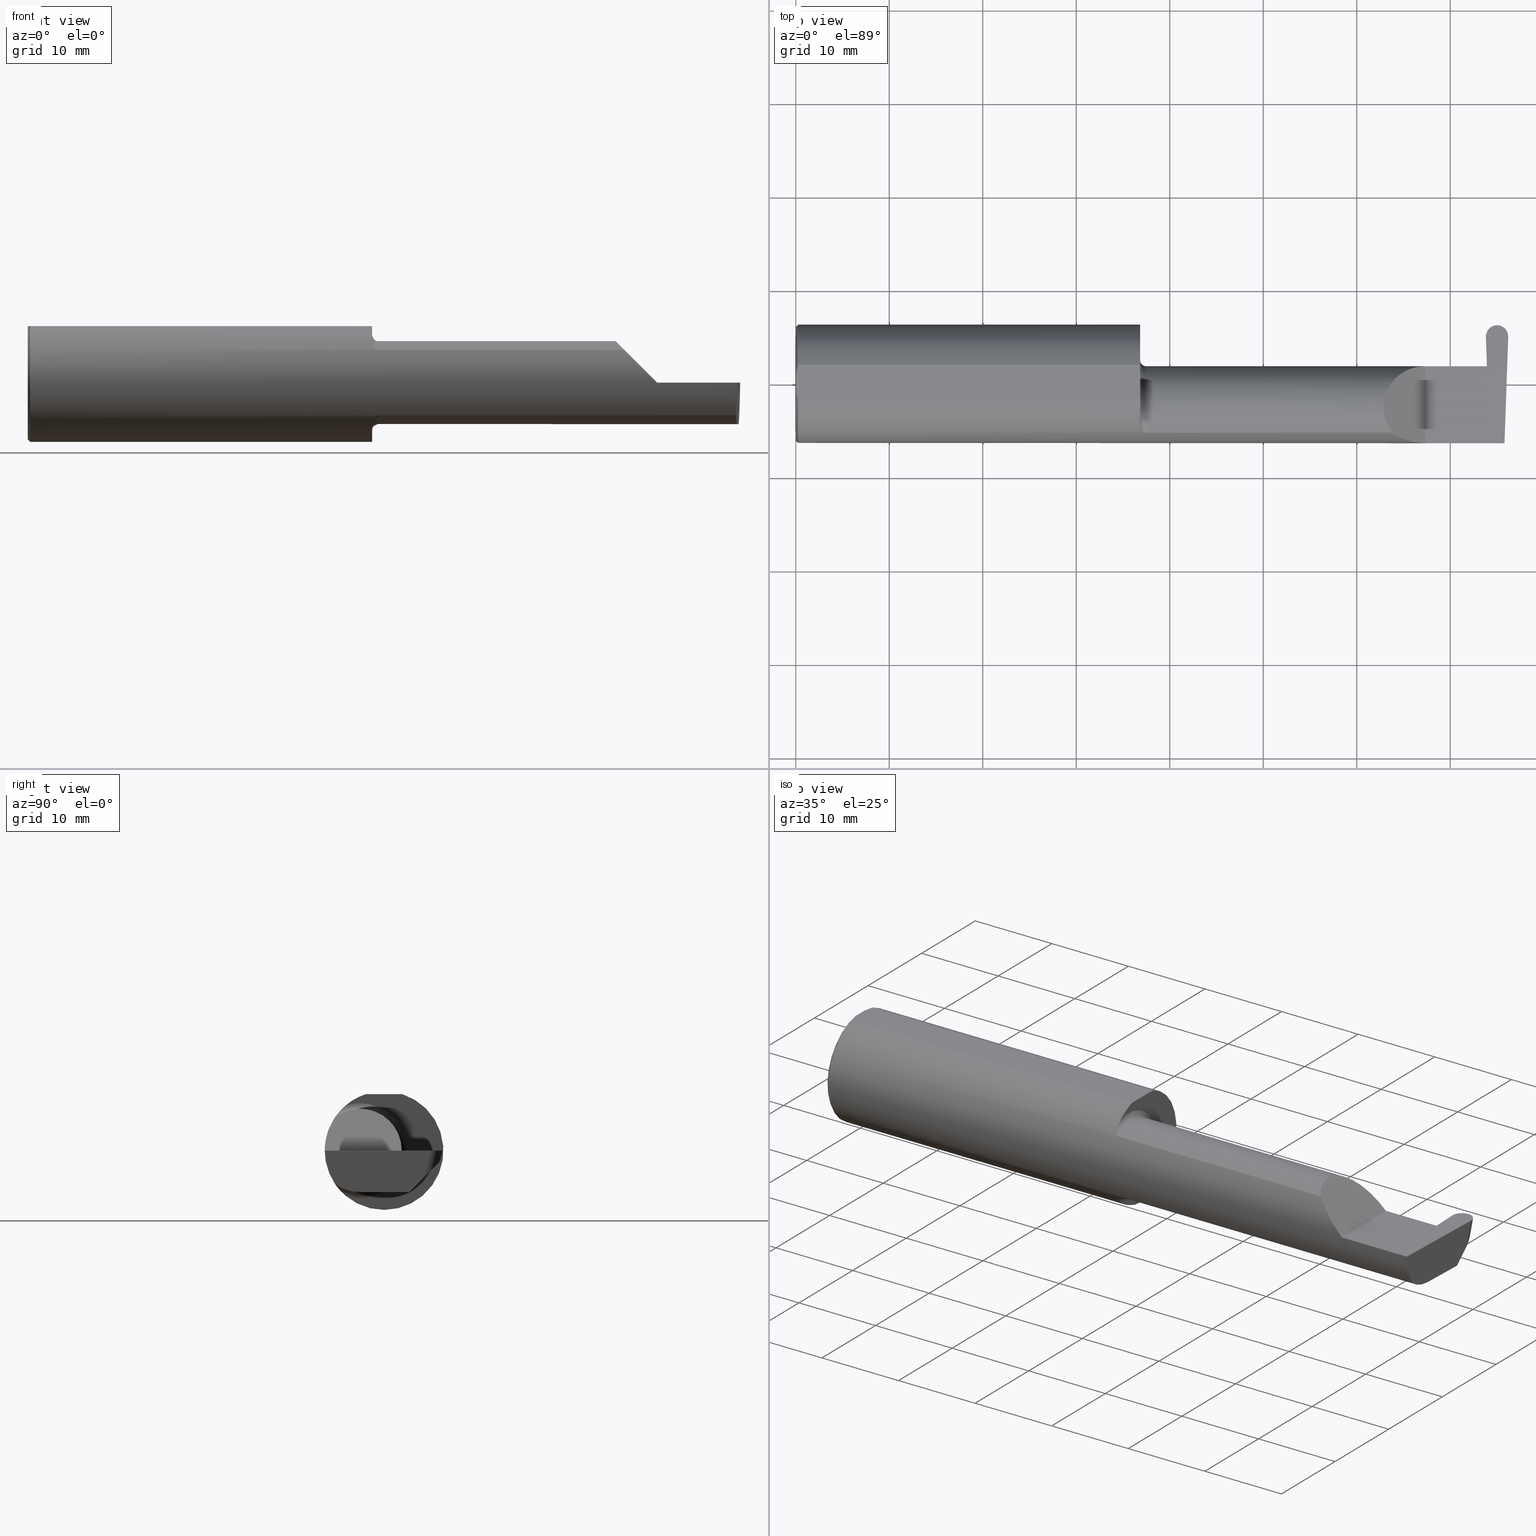
[diagram: canonical four-view strip — front | top / right | iso, engineering-drawing reading convention]
A machine part, canonical four-view strip (front | top / right | iso — engineering-drawing reading convention). The complete STEP part file that produces these views, byte-faithful:
ISO-10303-21;
HEADER;
FILE_DESCRIPTION (( 'STEP AP203' ),
    '1' );
FILE_NAME ('222467-GFR093-24.STEP',
    '2024-06-28T18:33:49',
    ( '' ),
    ( '' ),
    'SwSTEP 2.0',
    'SolidWorks 2024',
    '' );
FILE_SCHEMA (( 'CONFIG_CONTROL_DESIGN' ));
ENDSEC;

DATA;
#1 = CARTESIAN_POINT ( 'NONE',  ( 2.905909800896965045, 0.1971629156477839040, 0.0003401160246315233912 ) ) ;
#2 = VECTOR ( 'NONE', #424, 39.37007874015748143 ) ;
#3 = DIRECTION ( 'NONE',  ( -0.9992386149554828290, 0.03489418134010630057, 0.01745240643728358798 ) ) ;
#4 = PRODUCT_DEFINITION_SHAPE ( 'NONE', 'NONE',  #301 ) ;
#5 = ORIENTED_EDGE ( 'NONE', *, *, #352, .F. ) ;
#6 = CARTESIAN_POINT ( 'NONE',  ( 0.000000000000000000, 0.000000000000000000, 0.000000000000000000 ) ) ;
#7 = DIRECTION ( 'NONE',  ( 0.02590004391968206074, -0.2587322210431823866, -0.9656017944882974158 ) ) ;
#8 = ORIENTED_EDGE ( 'NONE', *, *, #48, .T. ) ;
#9 = CARTESIAN_POINT ( 'NONE',  ( 0.000000000000000000, 0.03090954545120574992, 0.2378499999999998671 ) ) ;
#10 = FACE_OUTER_BOUND ( 'NONE', #127, .T. ) ;
#11 = VECTOR ( 'NONE', #401, 39.37007874015748854 ) ;
#12 = ORIENTED_EDGE ( 'NONE', *, *, #587, .F. ) ;
#13 = EDGE_CURVE ( 'NONE', #351, #337, #184, .T. ) ;
#14 = CARTESIAN_POINT ( 'NONE',  ( 2.999933069103034811, 0.1971629156477839040, 0.0003401160246315201928 ) ) ;
#15 = VECTOR ( 'NONE', #255, 39.37007874015748143 ) ;
#16 = LINE ( 'NONE', #457, #79 ) ;
#17 = VERTEX_POINT ( 'NONE', #202 ) ;
#18 = CARTESIAN_POINT ( 'NONE',  ( 2.511704467739031887, -0.2080850024789287211, 0.1382955322609671911 ) ) ;
#19 = EDGE_CURVE ( 'NONE', #702, #384, #195, .T. ) ;
#20 = DIRECTION ( 'NONE',  ( -1.172794833305166028E-17, -1.000000000000000000, 0.000000000000000000 ) ) ;
#21 = ORIENTED_EDGE ( 'NONE', *, *, #38, .F. ) ;
#22 = TOROIDAL_SURFACE ( 'NONE', #604, 0.1999999999999999833, 0.02499999999999993894 ) ;
#23 = CARTESIAN_POINT ( 'NONE',  ( 2.650000000000000355, -0.2500000000000000555, 4.286263797015729199E-17 ) ) ;
#24 = ORIENTED_EDGE ( 'NONE', *, *, #189, .T. ) ;
#25 = LINE ( 'NONE', #464, #70 ) ;
#26 = LINE ( 'NONE', #311, #467 ) ;
#27 = LINE ( 'NONE', #574, #15 ) ;
#28 = CARTESIAN_POINT ( 'NONE',  ( 1.458182335268384699, -0.1972192205116130581, 0.1535061413537211483 ) ) ;
#29 = CC_DESIGN_APPROVAL ( #535, ( #301 ) ) ;
#30 = FACE_OUTER_BOUND ( 'NONE', #677, .T. ) ;
#31 = ORIENTED_EDGE ( 'NONE', *, *, #588, .F. ) ;
#32 = EDGE_CURVE ( 'NONE', #670, #583, #635, .T. ) ;
#33 = DIRECTION ( 'NONE',  ( -0.7071067811865439090, 0.000000000000000000, -0.7071067811865511255 ) ) ;
#34 = CARTESIAN_POINT ( 'NONE',  ( 1.468876997637615034, -0.2068363917296599241, 0.1401586554522231964 ) ) ;
#35 = DIRECTION ( 'NONE',  ( -0.7071067811865511255, 0.000000000000000000, 0.7071067811865439090 ) ) ;
#36 = EDGE_CURVE ( 'NONE', #570, #544, #117, .T. ) ;
#37 = CARTESIAN_POINT ( 'NONE',  ( 1.452968662030528879, -0.1849684355203377317, 0.1680843977756269203 ) ) ;
#38 = EDGE_CURVE ( 'NONE', #536, #81, #191, .T. ) ;
#39 = CARTESIAN_POINT ( 'NONE',  ( 2.952921434999999928, 0.2348123830215256280, -0.04601195412664271095 ) ) ;
#40 = CALENDAR_DATE ( 2024, 28, 6 ) ;
#41 = VECTOR ( 'NONE', #177, 39.37007874015748143 ) ;
#42 = CARTESIAN_POINT ( 'NONE',  ( 1.450000000000000178, -0.07650098038587530014, 0.2378499999999998671 ) ) ;
#43 = EDGE_LOOP ( 'NONE', ( #595, #329, #325 ) ) ;
#44 = DATE_AND_TIME ( #426, #321 ) ;
#45 = DIRECTION ( 'NONE',  ( 0.000000000000000000, 0.000000000000000000, -1.000000000000000000 ) ) ;
#46 = CYLINDRICAL_SURFACE ( 'NONE', #575, 0.04700000000000001399 ) ;
#47 = ORIENTED_EDGE ( 'NONE', *, *, #250, .T. ) ;
#48 = EDGE_CURVE ( 'NONE', #122, #702, #225, .T. ) ;
#49 = PERSON_AND_ORGANIZATION ( #476, #215 ) ;
#50 = CARTESIAN_POINT ( 'NONE',  ( 2.511704467739031887, -0.2080850024789287211, 0.1382955322609671911 ) ) ;
#51 = AXIS2_PLACEMENT_3D ( 'NONE', #172, #616, #285 ) ;
#52 = CARTESIAN_POINT ( 'NONE',  ( 0.000000000000000000, 0.000000000000000000, 0.000000000000000000 ) ) ;
#53 = CALENDAR_DATE ( 2024, 28, 6 ) ;
#54 = CARTESIAN_POINT ( 'NONE',  ( 2.951282902102036587, 0.2273593945695476792, -0.07385954497899656357 ) ) ;
#55 = DIRECTION ( 'NONE',  ( 0.000000000000000000, 0.000000000000000000, -1.000000000000000000 ) ) ;
#56 = VERTEX_POINT ( 'NONE', #313 ) ;
#57 = APPROVAL_DATE_TIME ( #44, #535 ) ;
#58 = PLANE ( 'NONE',  #164 ) ;
#59 = EDGE_CURVE ( 'NONE', #56, #691, #26, .T. ) ;
#60 = CC_DESIGN_DATE_AND_TIME_ASSIGNMENT ( #445, #223, ( #301 ) ) ;
#61 = CARTESIAN_POINT ( 'NONE',  ( 0.002005502345409073024, 0.04647171987093980799, 0.2378499999999998671 ) ) ;
#62 = VERTEX_POINT ( 'NONE', #483 ) ;
#63 = DIRECTION ( 'NONE',  ( 0.000000000000000000, 0.000000000000000000, -1.000000000000000000 ) ) ;
#64 = DIRECTION ( 'NONE',  ( 0.000000000000000000, -0.01745240643728358451, -0.9998476951563912696 ) ) ;
#65 = EDGE_CURVE ( 'NONE', #97, #674, #474, .T. ) ;
#66 = ORIENTED_EDGE ( 'NONE', *, *, #294, .T. ) ;
#67 = LOCAL_TIME ( 11, 33, 49.00000000000000000, #208 ) ;
#68 = DIRECTION ( 'NONE',  ( -0.02590004391968205380, 0.2587322210431823866, 0.9656017944882974158 ) ) ;
#69 = CARTESIAN_POINT ( 'NONE',  ( 2.952578855735824348, 0.2471499999999999808, 0.000000000000000000 ) ) ;
#70 = VECTOR ( 'NONE', #566, 39.37007874015748143 ) ;
#71 = ORIENTED_EDGE ( 'NONE', *, *, #317, .T. ) ;
#72 = CARTESIAN_POINT ( 'NONE',  ( -3.937007874019685528E-05, 0.2471499999999999808, 0.000000000000000000 ) ) ;
#73 = AXIS2_PLACEMENT_3D ( 'NONE', #370, #316, #89 ) ;
#74 = CARTESIAN_POINT ( 'NONE',  ( 2.650000000000000355, 0.07414999999999995206, 1.898202538678394994E-16 ) ) ;
#75 = ORIENTED_EDGE ( 'NONE', *, *, #560, .F. ) ;
#76 = FACE_OUTER_BOUND ( 'NONE', #371, .T. ) ;
#77 = APPLICATION_CONTEXT ( 'configuration controlled 3d designs of mechanical parts and assemblies' ) ;
#78 = VERTEX_POINT ( 'NONE', #421 ) ;
#79 = VECTOR ( 'NONE', #245, 39.37007874015748143 ) ;
#80 = LINE ( 'NONE', #14, #203 ) ;
#81 = VERTEX_POINT ( 'NONE', #484 ) ;
#82 = CARTESIAN_POINT ( 'NONE',  ( 2.952578855735824348, 0.2471499999999999808, 0.000000000000000000 ) ) ;
#83 = ADVANCED_FACE ( 'NONE', ( #217 ), #383, .F. ) ;
#84 = CARTESIAN_POINT ( 'NONE',  ( 1.474999999999999867, -0.1008500000000001201, 0.000000000000000000 ) ) ;
#85 = AXIS2_PLACEMENT_3D ( 'NONE', #646, #271, #55 ) ;
#86 = CARTESIAN_POINT ( 'NONE',  ( 1.451849548162864600, -0.1805300287242672663, 0.1728462070311781174 ) ) ;
#87 = LENGTH_MEASURE_WITH_UNIT ( LENGTH_MEASURE( 0.02539999999999999897 ), #362 );
#88 = DIRECTION ( 'NONE',  ( 0.000000000000000000, -1.000000000000000000, 0.000000000000000000 ) ) ;
#89 = DIRECTION ( 'NONE',  ( 0.000000000000000000, 0.000000000000000000, 1.000000000000000000 ) ) ;
#90 = DIRECTION ( 'NONE',  ( 0.000000000000000000, 0.000000000000000000, -1.000000000000000000 ) ) ;
#91 =( NAMED_UNIT ( * ) SI_UNIT ( $, .STERADIAN. ) SOLID_ANGLE_UNIT ( ) );
#92 = EDGE_CURVE ( 'NONE', #351, #78, #182, .T. ) ;
#93 = CARTESIAN_POINT ( 'NONE',  ( 1.456159563508734101, -0.1933019864360847606, 0.1584298865564833514 ) ) ;
#94 = ORIENTED_EDGE ( 'NONE', *, *, #267, .F. ) ;
#95 = DATE_TIME_ROLE ( 'classification_date' ) ;
#96 = CARTESIAN_POINT ( 'NONE',  ( 3.000000000000000444, -0.2500000000000000555, 0.000000000000000000 ) ) ;
#97 = VERTEX_POINT ( 'NONE', #106 ) ;
#98 = DATE_AND_TIME ( #330, #67 ) ;
#99 = DIRECTION ( 'NONE',  ( -0.03489949670249360009, -0.9993908270190959842, 1.222058880457094394E-16 ) ) ;
#100 = CYLINDRICAL_SURFACE ( 'NONE', #694, 0.04700000000000001399 ) ;
#101 = EDGE_CURVE ( 'NONE', #348, #429, #151, .T. ) ;
#102 = ORIENTED_EDGE ( 'NONE', *, *, #138, .F. ) ;
#103 = VECTOR ( 'NONE', #471, 39.37007874015748143 ) ;
#104 = PERSON_AND_ORGANIZATION ( #476, #215 ) ;
#105 = DIRECTION ( 'NONE',  ( 1.000000000000000000, 0.000000000000000000, 0.000000000000000000 ) ) ;
#106 = CARTESIAN_POINT ( 'NONE',  ( 2.983360130692194634, -0.2080850024789288044, -0.1382955322609671633 ) ) ;
#107 = ORIENTED_EDGE ( 'NONE', *, *, #101, .T. ) ;
#108 = CARTESIAN_POINT ( 'NONE',  ( 2.905918923725884451, 0.1970717818336510108, 0.000000000000000000 ) ) ;
#109 = AXIS2_PLACEMENT_3D ( 'NONE', #430, #386, #602 ) ;
#110 = CARTESIAN_POINT ( 'NONE',  ( 2.905871548989777509, 0.1984284167760241857, 0.000000000000000000 ) ) ;
#111 = ORIENTED_EDGE ( 'NONE', *, *, #461, .F. ) ;
#112 = ADVANCED_FACE ( 'NONE', ( #391 ), #547, .F. ) ;
#113 = DIRECTION ( 'NONE',  ( 1.000000000000000000, -1.172794833305166028E-17, 0.000000000000000000 ) ) ;
#114 = CARTESIAN_POINT ( 'NONE',  ( 2.190421435000000194, -0.2080850024789288044, -0.1382955322609671633 ) ) ;
#115 = VERTEX_POINT ( 'NONE', #324 ) ;
#116 = CARTESIAN_POINT ( 'NONE',  ( 2.650000000000000355, -0.2498499999999999610, 4.286263797015729199E-17 ) ) ;
#117 = CIRCLE ( 'NONE', #478, 0.2398500000000001742 ) ;
#118 = DIRECTION ( 'NONE',  ( 0.9992386149554829400, 0.03489418134010576628, 0.01745240643728358798 ) ) ;
#119 = ORIENTED_EDGE ( 'NONE', *, *, #494, .F. ) ;
#120 = CARTESIAN_POINT ( 'NONE',  ( 2.913397403057193191, -0.001152430219566414173, -0.1750000000000001832 ) ) ;
#121 = PLANE ( 'NONE',  #678 ) ;
#122 = VERTEX_POINT ( 'NONE', #594 ) ;
#123 = DIRECTION ( 'NONE',  ( -1.000000000000000000, -0.000000000000000000, -0.000000000000000000 ) ) ;
#124 = VERTEX_POINT ( 'NONE', #42 ) ;
#125 = DIRECTION ( 'NONE',  ( 1.000000000000000000, 0.000000000000000000, 0.000000000000000000 ) ) ;
#126 = CARTESIAN_POINT ( 'NONE',  ( 1.471700027347579098, -0.2077785947292767055, -0.1387580622202827518 ) ) ;
#127 = EDGE_LOOP ( 'NONE', ( #511, #107, #465, #229, #253 ) ) ;
#128 = DIRECTION ( 'NONE',  ( -0.03489949670249306579, 0.9993908270190960952, -1.222058880457094641E-16 ) ) ;
#129 = ORIENTED_EDGE ( 'NONE', *, *, #13, .T. ) ;
#130 = DIRECTION ( 'NONE',  ( 0.000000000000000000, 0.000000000000000000, -1.000000000000000000 ) ) ;
#131 = EDGE_CURVE ( 'NONE', #351, #124, #281, .T. ) ;
#132 = VECTOR ( 'NONE', #405, 39.37007874015748143 ) ;
#133 = ORIENTED_EDGE ( 'NONE', *, *, #577, .F. ) ;
#134 = CARTESIAN_POINT ( 'NONE',  ( 2.993681016992925770, 0.1058243371481696476, -0.1750000000000001277 ) ) ;
#135 = EDGE_CURVE ( 'NONE', #62, #691, #498, .T. ) ;
#136 = ORIENTED_EDGE ( 'NONE', *, *, #186, .F. ) ;
#137 = ORIENTED_EDGE ( 'NONE', *, *, #352, .T. ) ;
#138 = EDGE_CURVE ( 'NONE', #359, #268, #491, .T. ) ;
#139 = VECTOR ( 'NONE', #163, 39.37007874015748143 ) ;
#140 = PLANE ( 'NONE',  #193 ) ;
#141 = APPROVAL_PERSON_ORGANIZATION ( #648, #615, #219 ) ;
#142 = ORIENTED_EDGE ( 'NONE', *, *, #189, .F. ) ;
#143 = CARTESIAN_POINT ( 'NONE',  ( 2.983360130692194634, -0.2080850024789288044, -0.1382955322609671633 ) ) ;
#144 = CARTESIAN_POINT ( 'NONE',  ( 1.450000000000000178, 0.000000000000000000, 0.000000000000000000 ) ) ;
#145 = DIRECTION ( 'NONE',  ( 0.000000000000000000, 0.9659258262890682012, -0.2588190451025209615 ) ) ;
#146 = ORIENTED_EDGE ( 'NONE', *, *, #19, .F. ) ;
#147 = COORDINATED_UNIVERSAL_TIME_OFFSET ( 8, 0, .BEHIND. ) ;
#148 = DIRECTION ( 'NONE',  ( 0.000000000000000000, 1.000000000000000000, 0.000000000000000000 ) ) ;
#149 = EDGE_CURVE ( 'NONE', #124, #536, #486, .T. ) ;
#150 = EDGE_CURVE ( 'NONE', #583, #343, #543, .T. ) ;
#151 = LINE ( 'NONE', #261, #437 ) ;
#152 = ORIENTED_EDGE ( 'NONE', *, *, #347, .T. ) ;
#153 = DIRECTION ( 'NONE',  ( 1.172794833305166028E-17, 1.000000000000000000, 0.000000000000000000 ) ) ;
#154 = CARTESIAN_POINT ( 'NONE',  ( 2.986463790105515770, -0.1008500000000001617, -0.1750000000000000722 ) ) ;
#155 = ORIENTED_EDGE ( 'NONE', *, *, #317, .F. ) ;
#156 = APPROVAL_ROLE ( '' ) ;
#157 = AXIS2_PLACEMENT_3D ( 'NONE', #96, #651, #336 ) ;
#158 = CARTESIAN_POINT ( 'NONE',  ( 2.986970135337519761, -0.08635016968773891188, -0.1750000000000000722 ) ) ;
#159 = CARTESIAN_POINT ( 'NONE',  ( 2.998910637237953924, 0.2056520186124942140, -0.07517231853567442335 ) ) ;
#160 = ADVANCED_FACE ( 'NONE', ( #654 ), #46, .T. ) ;
#161 = EDGE_LOOP ( 'NONE', ( #600, #564, #369, #222 ) ) ;
#162 = DATE_AND_TIME ( #40, #524 ) ;
#163 = DIRECTION ( 'NONE',  ( 1.000000000000000000, -1.172794833305166028E-17, 0.000000000000000000 ) ) ;
#164 = AXIS2_PLACEMENT_3D ( 'NONE', #608, #113, #153 ) ;
#165 = CARTESIAN_POINT ( 'NONE',  ( 2.908987657962752937, 0.1664162189566759931, -0.1144081181914931161 ) ) ;
#166 = ORIENTED_EDGE ( 'NONE', *, *, #626, .T. ) ;
#167 = CARTESIAN_POINT ( 'NONE',  ( 1.450000000000000178, -0.1616050818046603221, -0.1905487340154980724 ) ) ;
#168 = DIRECTION ( 'NONE',  ( 0.000000000000000000, 0.9659258262890682012, -0.2588190451025209615 ) ) ;
#169 = ORIENTED_EDGE ( 'NONE', *, *, #65, .F. ) ;
#170 = DIRECTION ( 'NONE',  ( 0.9998367324388628408, 0.0003153570480505020501, 0.01806679318280274976 ) ) ;
#171 = AXIS2_PLACEMENT_3D ( 'NONE', #52, #276, #432 ) ;
#172 = CARTESIAN_POINT ( 'NONE',  ( 3.402190948718818220, -0.1008500000000001617, -0.1750000000000000722 ) ) ;
#173 = ORIENTED_EDGE ( 'NONE', *, *, #135, .F. ) ;
#174 = LINE ( 'NONE', #349, #451 ) ;
#175 = CARTESIAN_POINT ( 'NONE',  ( 2.910211446934811264, 0.07414999999999995206, 0.000000000000000000 ) ) ;
#176 = EDGE_LOOP ( 'NONE', ( #173, #449, #500, #333, #610, #286 ) ) ;
#177 = DIRECTION ( 'NONE',  ( 1.000000000000000000, -0.000000000000000000, -0.000000000000000000 ) ) ;
#178 = CARTESIAN_POINT ( 'NONE',  ( 1.467611663768900510, -0.2061921161193828456, -0.1411075319999379185 ) ) ;
#179 = ORIENTED_EDGE ( 'NONE', *, *, #431, .T. ) ;
#180 = LINE ( 'NONE', #344, #132 ) ;
#181 = APPLICATION_CONTEXT ( 'configuration controlled 3d designs of mechanical parts and assemblies' ) ;
#182 = CIRCLE ( 'NONE', #85, 0.2498499999999999888 ) ;
#183 = EDGE_LOOP ( 'NONE', ( #665, #425, #47, #652 ) ) ;
#184 = B_SPLINE_CURVE_WITH_KNOTS ( 'NONE', 3,
 ( #585, #640, #309, #315 ),
 .UNSPECIFIED., .F., .F.,
 ( 4, 4 ),
 ( 0.01317593029100226111, 0.01435802289191457325 ),
 .UNSPECIFIED. ) ;
#185 = ADVANCED_FACE ( 'NONE', ( #266 ), #663, .F. ) ;
#186 = EDGE_CURVE ( 'NONE', #17, #62, #705, .T. ) ;
#187 = LINE ( 'NONE', #397, #295 ) ;
#188 = CARTESIAN_POINT ( 'NONE',  ( 1.467647060162628359, -0.2062109266231180460, 0.1410799729252292800 ) ) ;
#189 = EDGE_CURVE ( 'NONE', #272, #17, #345, .T. ) ;
#190 = AXIS2_PLACEMENT_3D ( 'NONE', #247, #170, #296 ) ;
#191 = LINE ( 'NONE', #529, #249 ) ;
#192 = CARTESIAN_POINT ( 'NONE',  ( 2.899099083631634599, 0.07407892981889442618, -0.004071607948626658653 ) ) ;
#193 = AXIS2_PLACEMENT_3D ( 'NONE', #690, #33, #35 ) ;
#194 = DIRECTION ( 'NONE',  ( -1.000000000000000000, -0.000000000000000000, -0.000000000000000000 ) ) ;
#195 = CIRCLE ( 'NONE', #552, 0.1750000000000000444 ) ;
#196 = CYLINDRICAL_SURFACE ( 'NONE', #73, 0.2498499999999999888 ) ;
#197 = EDGE_CURVE ( 'NONE', #97, #384, #589, .T. ) ;
#198 = ORIENTED_EDGE ( 'NONE', *, *, #588, .T. ) ;
#199 = CARTESIAN_POINT ( 'NONE',  ( 2.650000000000000355, -0.2498499999999999610, 4.286263797015729199E-17 ) ) ;
#200 = MANIFOLD_SOLID_BREP ( 'Radii', #499 ) ;
#201 = CC_DESIGN_APPROVAL ( #615, ( #618 ) ) ;
#202 = CARTESIAN_POINT ( 'NONE',  ( 2.952921434999999928, 0.2348123830215256280, -0.04601195412664271095 ) ) ;
#203 = VECTOR ( 'NONE', #240, 39.37007874015748854 ) ;
#204 = CARTESIAN_POINT ( 'NONE',  ( 3.501298404146671484, 0.2498499999999998500, 0.2378499999999998671 ) ) ;
#205 = DIRECTION ( 'NONE',  ( 1.000000000000000000, 0.000000000000000000, 0.000000000000000000 ) ) ;
#206 = ADVANCED_FACE ( 'NONE', ( #209 ), #100, .T. ) ;
#207 = VECTOR ( 'NONE', #221, 39.37007874015748854 ) ;
#208 = COORDINATED_UNIVERSAL_TIME_OFFSET ( 8, 0, .BEHIND. ) ;
#209 = FACE_OUTER_BOUND ( 'NONE', #515, .T. ) ;
#210 = ORIENTED_EDGE ( 'NONE', *, *, #488, .T. ) ;
#211 = APPROVAL_DATE_TIME ( #373, #681 ) ;
#212 = EDGE_CURVE ( 'NONE', #613, #343, #469, .T. ) ;
#213 = LOCAL_TIME ( 11, 33, 49.00000000000000000, #501 ) ;
#214 = FACE_OUTER_BOUND ( 'NONE', #161, .T. ) ;
#215 = ORGANIZATION ( 'UNSPECIFIED', 'UNSPECIFIED', '' ) ;
#216 = SECURITY_CLASSIFICATION ( '', '', #439 ) ;
#217 = FACE_OUTER_BOUND ( 'NONE', #567, .T. ) ;
#218 = ORIENTED_EDGE ( 'NONE', *, *, #32, .F. ) ;
#219 = APPROVAL_ROLE ( '' ) ;
#220 = FACE_OUTER_BOUND ( 'NONE', #183, .T. ) ;
#221 = DIRECTION ( 'NONE',  ( -0.03489949670249305885, 0.9993908270190959842, -0.000000000000000000 ) ) ;
#222 = ORIENTED_EDGE ( 'NONE', *, *, #312, .T. ) ;
#223 = DATE_TIME_ROLE ( 'creation_date' ) ;
#224 = DIRECTION ( 'NONE',  ( 0.000000000000000000, -0.7071067811865435759, -0.7071067811865514585 ) ) ;
#225 = B_SPLINE_CURVE_WITH_KNOTS ( 'NONE', 3,
 ( #411, #579, #522, #86, #37, #93, #28, #254, #415, #188, #34, #689, #633, #259 ),
 .UNSPECIFIED., .F., .F.,
 ( 4, 2, 2, 2, 2, 2, 4 ),
 ( 0.0003834465838148137275, 0.0008781406165086571864, 0.001372834649202500645, 0.001867528681896344104, 0.002114875698243270496, 0.002238549206416740739, 0.002362222714590210982 ),
 .UNSPECIFIED. ) ;
#226 = UNCERTAINTY_MEASURE_WITH_UNIT (LENGTH_MEASURE( 1.000000000000000082E-05 ), #688, 'distance_accuracy_value', 'NONE');
#227 = DIRECTION ( 'NONE',  ( -1.000000000000000000, 1.172794833305166028E-17, -0.000000000000000000 ) ) ;
#228 = EDGE_CURVE ( 'NONE', #544, #78, #16, .T. ) ;
#229 = ORIENTED_EDGE ( 'NONE', *, *, #59, .T. ) ;
#230 = B_SPLINE_CURVE_WITH_KNOTS ( 'NONE', 3,
 ( #551, #61, #620, #288 ),
 .UNSPECIFIED., .F., .F.,
 ( 4, 4 ),
 ( 0.01593449416844765903, 0.01712021724825598876 ),
 .UNSPECIFIED. ) ;
#231 = FACE_OUTER_BOUND ( 'NONE', #307, .T. ) ;
#232 = FACE_OUTER_BOUND ( 'NONE', #444, .T. ) ;
#233 = APPROVAL_PERSON_ORGANIZATION ( #104, #681, #537 ) ;
#234 = ORIENTED_EDGE ( 'NONE', *, *, #473, .F. ) ;
#235 = PRODUCT ( '222467-GFR093-24', '222467-GFR093-24', '', ( #586 ) ) ;
#236 = CARTESIAN_POINT ( 'NONE',  ( 0.000000000000000000, 0.000000000000000000, 0.000000000000000000 ) ) ;
#237 = CARTESIAN_POINT ( 'NONE',  ( 1.458176740666625282, -0.1972027065478072216, -0.1535263573771915302 ) ) ;
#238 = ORIENTED_EDGE ( 'NONE', *, *, #135, .T. ) ;
#239 = ADVANCED_FACE ( 'NONE', ( #10 ), #395, .F. ) ;
#240 = DIRECTION ( 'NONE',  ( 0.02590004391968220299, 0.2587322210431823866, 0.9656017944882974158 ) ) ;
#241 = FACE_OUTER_BOUND ( 'NONE', #513, .T. ) ;
#242 = ORIENTED_EDGE ( 'NONE', *, *, #131, .T. ) ;
#243 = LINE ( 'NONE', #23, #379 ) ;
#244 = AXIS2_PLACEMENT_3D ( 'NONE', #270, #284, #490 ) ;
#245 = DIRECTION ( 'NONE',  ( 0.7071067811865511255, 0.000000000000000000, -0.7071067811865439090 ) ) ;
#246 = VERTEX_POINT ( 'NONE', #563 ) ;
#247 = CARTESIAN_POINT ( 'NONE',  ( 2.914374952050851508, -2.845228123214176286, -0.1794551390957415116 ) ) ;
#248 = ORIENTED_EDGE ( 'NONE', *, *, #695, .F. ) ;
#249 = VECTOR ( 'NONE', #367, 39.37007874015748143 ) ;
#250 = EDGE_CURVE ( 'NONE', #570, #81, #230, .T. ) ;
#251 = CARTESIAN_POINT ( 'NONE',  ( 2.984022185481226774, -0.1771157075472507281, -0.1623092683844333528 ) ) ;
#252 = PLANE ( 'NONE',  #382 ) ;
#253 = ORIENTED_EDGE ( 'NONE', *, *, #410, .T. ) ;
#254 = CARTESIAN_POINT ( 'NONE',  ( 1.462616400345755574, -0.2024684335577101868, 0.1464246884265639759 ) ) ;
#255 = DIRECTION ( 'NONE',  ( -0.03701744261649734385, 0.7066221440565400025, 0.7066221440565478851 ) ) ;
#256 = DIRECTION ( 'NONE',  ( 1.000000000000000000, -0.000000000000000000, -0.000000000000000000 ) ) ;
#257 = AXIS2_PLACEMENT_3D ( 'NONE', #609, #3, #328 ) ;
#258 = CARTESIAN_POINT ( 'NONE',  ( 2.983451391416268805, -0.2498499999999999610, -0.04956584089959722994 ) ) ;
#259 = CARTESIAN_POINT ( 'NONE',  ( 1.474999999999999867, -0.2080850024789288877, 0.1382955322609669691 ) ) ;
#260 = AXIS2_PLACEMENT_3D ( 'NONE', #381, #427, #148 ) ;
#261 = CARTESIAN_POINT ( 'NONE',  ( 2.913428897145816432, -0.1010041597270660008, -0.1750000000000000722 ) ) ;
#262 = ADVANCED_FACE ( 'NONE', ( #241 ), #121, .F. ) ;
#263 = PRODUCT_RELATED_PRODUCT_CATEGORY ( 'detail', '', ( #235 ) ) ;
#264 = CONICAL_SURFACE ( 'NONE', #669, 0.2398500000000001742, 0.7853981633974431720 ) ;
#265 = CARTESIAN_POINT ( 'NONE',  ( 2.981446984665954592, 0.2471499999999999253, 5.045648196544941064E-18 ) ) ;
#266 = FACE_OUTER_BOUND ( 'NONE', #319, .T. ) ;
#267 = EDGE_CURVE ( 'NONE', #455, #115, #565, .T. ) ;
#268 = VERTEX_POINT ( 'NONE', #346 ) ;
#269 = APPROVAL_STATUS ( 'not_yet_approved' ) ;
#270 = CARTESIAN_POINT ( 'NONE',  ( -3.937007874019685528E-05, 0.2471499999999999808, 0.000000000000000000 ) ) ;
#271 = DIRECTION ( 'NONE',  ( 1.000000000000000000, 0.000000000000000000, 0.000000000000000000 ) ) ;
#272 = VERTEX_POINT ( 'NONE', #506 ) ;
#273 = CALENDAR_DATE ( 2024, 28, 6 ) ;
#274 = ADVANCED_FACE ( 'NONE', ( #298 ), #22, .F. ) ;
#275 = CARTESIAN_POINT ( 'NONE',  ( 1.474999999999999867, -0.2080850024789288877, -0.1382955322609669691 ) ) ;
#276 = DIRECTION ( 'NONE',  ( 1.000000000000000000, 0.000000000000000000, 0.000000000000000000 ) ) ;
#277 = EDGE_LOOP ( 'NONE', ( #242, #532, #380, #475, #155, #590 ) ) ;
#278 = PERSON_AND_ORGANIZATION ( #476, #215 ) ;
#279 = CARTESIAN_POINT ( 'NONE',  ( 2.552984868485331571, -0.2355204011147991605, 0.09701513151466779894 ) ) ;
#280 = ADVANCED_FACE ( 'NONE', ( #232 ), #612, .F. ) ;
#281 = LINE ( 'NONE', #599, #645 ) ;
#282 = EDGE_LOOP ( 'NONE', ( #8, #638, #66, #556 ) ) ;
#283 = DIRECTION ( 'NONE',  ( 0.000000000000000000, 0.000000000000000000, 1.000000000000000000 ) ) ;
#284 = DIRECTION ( 'NONE',  ( 0.000000000000000000, -0.9659258262890682012, 0.2588190451025209060 ) ) ;
#285 = DIRECTION ( 'NONE',  ( 0.000000000000000000, -1.000000000000000000, 1.223176342469858371E-16 ) ) ;
#286 = ORIENTED_EDGE ( 'NONE', *, *, #410, .F. ) ;
#287 = CARTESIAN_POINT ( 'NONE',  ( 0.000000000000000000, 0.000000000000000000, -0.2398500000000001742 ) ) ;
#288 = CARTESIAN_POINT ( 'NONE',  ( 0.009999999999999927350, 0.07650098038587520299, 0.2378499999999998671 ) ) ;
#289 = B_SPLINE_CURVE_WITH_KNOTS ( 'NONE', 3,
 ( #448, #462, #126, #680, #178, #342, #555, #237, #454, #673, #398, #167 ),
 .UNSPECIFIED., .F., .F.,
 ( 4, 2, 2, 2, 2, 4 ),
 ( 1.964491429041408350E-07, 0.0001260981470478398584, 0.0002519998449527755370, 0.0005038032407626330707, 0.001007410032382347271, 0.002014623615621782392 ),
 .UNSPECIFIED. ) ;
#290 = ORIENTED_EDGE ( 'NONE', *, *, #294, .F. ) ;
#291 = CARTESIAN_POINT ( 'NONE',  ( 2.950598203186437285, 0.2669360140626422240, 0.07384240976105316268 ) ) ;
#292 = CARTESIAN_POINT ( 'NONE',  ( 2.904900810685382861, 0.2262267247321106678, 1.148125750367493843E-17 ) ) ;
#293 = ORIENTED_EDGE ( 'NONE', *, *, #150, .T. ) ;
#294 = EDGE_CURVE ( 'NONE', #384, #388, #289, .T. ) ;
#295 = VECTOR ( 'NONE', #614, 39.37007874015748854 ) ;
#296 = DIRECTION ( 'NONE',  ( 0.01806679408117471686, 0.000000000000000000, -0.9998367821557817559 ) ) ;
#297 = VECTOR ( 'NONE', #576, 39.37007874015748143 ) ;
#298 = FACE_OUTER_BOUND ( 'NONE', #282, .T. ) ;
#299 = ORIENTED_EDGE ( 'NONE', *, *, #442, .T. ) ;
#300 = FACE_OUTER_BOUND ( 'NONE', #641, .T. ) ;
#301 = PRODUCT_DEFINITION ( 'UNKNOWN', '', #618, #447 ) ;
#302 = CIRCLE ( 'NONE', #109, 0.1999999999999999833 ) ;
#303 = ORIENTED_EDGE ( 'NONE', *, *, #580, .F. ) ;
#304 = CC_DESIGN_APPROVAL ( #681, ( #216 ) ) ;
#305 = EDGE_CURVE ( 'NONE', #246, #458, #338, .T. ) ;
#306 = CIRCLE ( 'NONE', #571, 0.2498499999999999888 ) ;
#307 = EDGE_LOOP ( 'NONE', ( #463, #24, #365, #238, #628 ) ) ;
#308 = CARTESIAN_POINT ( 'NONE',  ( 2.899170153812740125, 0.07414999999999995206, 0.000000000000000000 ) ) ;
#309 = CARTESIAN_POINT ( 'NONE',  ( 0.001983148254845710189, -0.04629825796642594860, 0.2378499999999998671 ) ) ;
#310 = CARTESIAN_POINT ( 'NONE',  ( 2.899134618722187362, 0.07411446490944718912, -0.002035803974313329327 ) ) ;
#311 = CARTESIAN_POINT ( 'NONE',  ( -3.937007874019685528E-05, 0.1058243371481696476, -0.1750000000000001277 ) ) ;
#312 = EDGE_CURVE ( 'NONE', #122, #388, #302, .T. ) ;
#313 = CARTESIAN_POINT ( 'NONE',  ( 2.912161853007074086, 0.1058243371481696893, -0.1750000000000001277 ) ) ;
#314 = CARTESIAN_POINT ( 'NONE',  ( 2.984317093749864647, -0.2498499999999999888, 0.000000000000000000 ) ) ;
#315 = CARTESIAN_POINT ( 'NONE',  ( 0.000000000000000000, -0.03090954545120560767, 0.2378499999999998671 ) ) ;
#316 = DIRECTION ( 'NONE',  ( -1.000000000000000000, -0.000000000000000000, -0.000000000000000000 ) ) ;
#317 = EDGE_CURVE ( 'NONE', #337, #570, #550, .T. ) ;
#318 = CC_DESIGN_PERSON_AND_ORGANIZATION_ASSIGNMENT ( #489, #334, ( #301 ) ) ;
#319 = EDGE_LOOP ( 'NONE', ( #71, #519, #487 ) ) ;
#320 = ORIENTED_EDGE ( 'NONE', *, *, #92, .F. ) ;
#321 = LOCAL_TIME ( 11, 33, 49.00000000000000000, #326 ) ;
#322 = SHAPE_DEFINITION_REPRESENTATION ( #4, #452 ) ;
#323 = LOCAL_TIME ( 11, 33, 49.00000000000000000, #496 ) ;
#324 = CARTESIAN_POINT ( 'NONE',  ( 2.650000000000000355, 0.07414999999999995206, 1.898202538678394994E-16 ) ) ;
#325 = ORIENTED_EDGE ( 'NONE', *, *, #577, .T. ) ;
#326 = COORDINATED_UNIVERSAL_TIME_OFFSET ( 8, 0, .BEHIND. ) ;
#327 = CARTESIAN_POINT ( 'NONE',  ( 2.999923946274115405, 0.1970717818336510108, 0.000000000000000000 ) ) ;
#328 = DIRECTION ( 'NONE',  ( -0.03489949670249360009, -0.9993908270190959842, 0.000000000000000000 ) ) ;
#329 = ORIENTED_EDGE ( 'NONE', *, *, #470, .T. ) ;
#330 = CALENDAR_DATE ( 2024, 28, 6 ) ;
#331 = CARTESIAN_POINT ( 'NONE',  ( 2.913374615485722963, 0.07109536363756185917, -0.1750000000000001277 ) ) ;
#332 = CARTESIAN_POINT ( 'NONE',  ( 2.996327343641414398, 0.1563397935939803141, -0.1244845435541888923 ) ) ;
#333 = ORIENTED_EDGE ( 'NONE', *, *, #626, .F. ) ;
#334 = PERSON_AND_ORGANIZATION_ROLE ( 'creator' ) ;
#335 = LINE ( 'NONE', #1, #482 ) ;
#336 = DIRECTION ( 'NONE',  ( -1.000000000000000000, 0.000000000000000000, 1.224646799147351975E-16 ) ) ;
#337 = VERTEX_POINT ( 'NONE', #650 ) ;
#338 = LINE ( 'NONE', #54, #637 ) ;
#339 = CARTESIAN_POINT ( 'NONE',  ( 2.905871548989777509, 0.1984284167760241857, 0.000000000000000000 ) ) ;
#340 = ORIENTED_EDGE ( 'NONE', *, *, #197, .T. ) ;
#341 = CARTESIAN_POINT ( 'NONE',  ( 0.009999999999999927350, -0.07650098038587520299, 0.2378499999999998671 ) ) ;
#342 = CARTESIAN_POINT ( 'NONE',  ( 1.464302603425052807, -0.2041009206016211885, -0.1441313430770041759 ) ) ;
#343 = VERTEX_POINT ( 'NONE', #108 ) ;
#344 = CARTESIAN_POINT ( 'NONE',  ( 2.190421435000000194, -0.2080850024789288044, 0.1382955322609671633 ) ) ;
#345 =( BOUNDED_CURVE ( )  B_SPLINE_CURVE ( 3, ( #165, #531, #603, #39 ),
 .UNSPECIFIED., .F., .F. ) 
 B_SPLINE_CURVE_WITH_KNOTS ( ( 4, 4 ),
 ( 1.556556287886220691, 3.137579012548759039 ),
 .UNSPECIFIED. ) 
 CURVE ( )  GEOMETRIC_REPRESENTATION_ITEM ( )  RATIONAL_B_SPLINE_CURVE ( ( 1.000000000000000000, 0.8023213171586004444, 0.8023213171586004444, 1.000000000000000000 ) ) 
 REPRESENTATION_ITEM ( '' )  );
#346 = CARTESIAN_POINT ( 'NONE',  ( 2.899063548541081836, 0.07404339472834166325, -0.006107411922939997087 ) ) ;
#347 = EDGE_CURVE ( 'NONE', #687, #455, #533, .T. ) ;
#348 = VERTEX_POINT ( 'NONE', #554 ) ;
#349 = CARTESIAN_POINT ( 'NONE',  ( 2.999971321010222347, 0.1984284167760241857, 0.000000000000000000 ) ) ;
#350 = DIRECTION ( 'NONE',  ( 0.000000000000000000, -0.9998476951563912696, 0.01745240643728358451 ) ) ;
#351 = VERTEX_POINT ( 'NONE', #341 ) ;
#352 = EDGE_CURVE ( 'NONE', #343, #272, #335, .T. ) ;
#353 = LINE ( 'NONE', #72, #41 ) ;
#354 = CARTESIAN_POINT ( 'NONE',  ( 2.511704467739031887, -0.2080850024789287211, 0.1382955322609671911 ) ) ;
#355 = ORIENTED_EDGE ( 'NONE', *, *, #228, .T. ) ;
#356 = EDGE_CURVE ( 'NONE', #361, #246, #539, .T. ) ;
#357 = PLANE ( 'NONE',  #190 ) ;
#358 = CONICAL_SURFACE ( 'NONE', #417, 0.2398500000000001742, 0.7853981633974431720 ) ;
#359 = VERTEX_POINT ( 'NONE', #708 ) ;
#360 = VECTOR ( 'NONE', #128, 39.37007874015747433 ) ;
#361 = VERTEX_POINT ( 'NONE', #327 ) ;
#362 =( LENGTH_UNIT ( ) NAMED_UNIT ( * ) SI_UNIT ( $, .METRE. ) );
#363 = ADVANCED_FACE ( 'NONE', ( #231 ), #704, .F. ) ;
#364 = EDGE_CURVE ( 'NONE', #115, #670, #440, .T. ) ;
#365 = ORIENTED_EDGE ( 'NONE', *, *, #186, .T. ) ;
#366 = AXIS2_PLACEMENT_3D ( 'NONE', #497, #653, #224 ) ;
#367 = DIRECTION ( 'NONE',  ( -1.000000000000000000, -0.000000000000000000, -0.000000000000000000 ) ) ;
#368 = CARTESIAN_POINT ( 'NONE',  ( 3.402190948718818220, -0.1008500000000001617, -0.1750000000000000722 ) ) ;
#369 = ORIENTED_EDGE ( 'NONE', *, *, #629, .T. ) ;
#370 = CARTESIAN_POINT ( 'NONE',  ( 0.000000000000000000, 0.000000000000000000, 0.000000000000000000 ) ) ;
#371 = EDGE_LOOP ( 'NONE', ( #542, #31, #433 ) ) ;
#372 = VECTOR ( 'NONE', #534, 39.37007874015748143 ) ;
#373 = DATE_AND_TIME ( #53, #323 ) ;
#374 = ADVANCED_FACE ( 'NONE', ( #214 ), #58, .T. ) ;
#375 = ORIENTED_EDGE ( 'NONE', *, *, #138, .T. ) ;
#376 = CARTESIAN_POINT ( 'NONE',  ( 2.984317093749864647, -0.2498499999999999888, 0.000000000000000000 ) ) ;
#377 = CC_DESIGN_PERSON_AND_ORGANIZATION_ASSIGNMENT ( #385, #703, ( #618 ) ) ;
#378 = DIRECTION ( 'NONE',  ( -0.0003154085283454242006, 0.9999999502587288980, -1.223178646569383192E-16 ) ) ;
#379 = VECTOR ( 'NONE', #514, 39.37007874015748143 ) ;
#380 = ORIENTED_EDGE ( 'NONE', *, *, #38, .T. ) ;
#381 = CARTESIAN_POINT ( 'NONE',  ( 1.450000000000000178, 0.000000000000000000, 0.000000000000000000 ) ) ;
#382 = AXIS2_PLACEMENT_3D ( 'NONE', #204, #523, #480 ) ;
#383 = PLANE ( 'NONE',  #157 ) ;
#384 = VERTEX_POINT ( 'NONE', #275 ) ;
#385 = PERSON_AND_ORGANIZATION ( #476, #215 ) ;
#386 = DIRECTION ( 'NONE',  ( -1.000000000000000000, 1.172794833305166028E-17, -0.000000000000000000 ) ) ;
#387 = CARTESIAN_POINT ( 'NONE',  ( 2.996855212037246918, 0.1664162189566759653, -0.1144081181914931300 ) ) ;
#388 = VERTEX_POINT ( 'NONE', #485 ) ;
#389 = AXIS2_PLACEMENT_3D ( 'NONE', #175, #350, #64 ) ;
#390 = DIRECTION ( 'NONE',  ( -0.02590004391968220646, -0.2587322210431823866, -0.9656017944882975268 ) ) ;
#391 = FACE_OUTER_BOUND ( 'NONE', #176, .T. ) ;
#392 = ORIENTED_EDGE ( 'NONE', *, *, #481, .F. ) ;
#393 = CC_DESIGN_PERSON_AND_ORGANIZATION_ASSIGNMENT ( #591, #661, ( #216 ) ) ;
#394 = CARTESIAN_POINT ( 'NONE',  ( 0.000000000000000000, 0.2498499999999998500, 0.2378499999999998671 ) ) ;
#395 = PLANE ( 'NONE',  #51 ) ;
#396 = ORIENTED_EDGE ( 'NONE', *, *, #48, .F. ) ;
#397 = CARTESIAN_POINT ( 'NONE',  ( 2.910211446934811264, 0.07414999999999995206, -9.645561665750315126E-21 ) ) ;
#398 = CARTESIAN_POINT ( 'NONE',  ( 1.450000000000000178, -0.1716188362992554783, -0.1820560320165480750 ) ) ;
#399 = ORIENTED_EDGE ( 'NONE', *, *, #32, .T. ) ;
#400 = ORIENTED_EDGE ( 'NONE', *, *, #403, .F. ) ;
#401 = DIRECTION ( 'NONE',  ( -0.01806954526206907413, 0.01744955702544858864, 0.9996844524616943506 ) ) ;
#402 = CARTESIAN_POINT ( 'NONE',  ( 1.474999999999999867, -0.1008500000000001340, 0.000000000000000000 ) ) ;
#403 = EDGE_CURVE ( 'NONE', #388, #536, #569, .T. ) ;
#404 = VERTEX_POINT ( 'NONE', #376 ) ;
#405 = DIRECTION ( 'NONE',  ( 1.000000000000000000, -1.172794833305166028E-17, 0.000000000000000000 ) ) ;
#406 = VECTOR ( 'NONE', #709, 39.37007874015748143 ) ;
#407 = ORIENTED_EDGE ( 'NONE', *, *, #131, .F. ) ;
#408 = CC_DESIGN_SECURITY_CLASSIFICATION ( #216, ( #618 ) ) ;
#409 = DIRECTION ( 'NONE',  ( -1.000000000000000000, 1.172794833305166028E-17, -0.000000000000000000 ) ) ;
#410 = EDGE_CURVE ( 'NONE', #691, #674, #592, .T. ) ;
#411 = CARTESIAN_POINT ( 'NONE',  ( 1.450000000000000178, -0.1616050818046603221, 0.1905487340154980724 ) ) ;
#412 =( BOUNDED_CURVE ( )  B_SPLINE_CURVE ( 3, ( #667, #505, #508, #466 ),
 .UNSPECIFIED., .F., .T. ) 
 B_SPLINE_CURVE_WITH_KNOTS ( ( 4, 4 ),
 ( 4.712388980384684345, 4.731354904357339741 ),
 .UNSPECIFIED. ) 
 CURVE ( )  GEOMETRIC_REPRESENTATION_ITEM ( )  RATIONAL_B_SPLINE_CURVE ( ( 1.000000000000000000, 0.9999700247019541743, 0.9999700247019541743, 1.000000000000000000 ) ) 
 REPRESENTATION_ITEM ( '' )  );
#413 = AXIS2_PLACEMENT_3D ( 'NONE', #144, #644, #414 ) ;
#414 = DIRECTION ( 'NONE',  ( 0.000000000000000000, 1.000000000000000000, 0.000000000000000000 ) ) ;
#415 = CARTESIAN_POINT ( 'NONE',  ( 1.464343523383978996, -0.2041337200786082218, 0.1440846171672514331 ) ) ;
#416 = FACE_OUTER_BOUND ( 'NONE', #277, .T. ) ;
#417 = AXIS2_PLACEMENT_3D ( 'NONE', #538, #105, #45 ) ;
#418 = ORIENTED_EDGE ( 'NONE', *, *, #629, .F. ) ;
#419 = ADVANCED_FACE ( 'NONE', ( #220 ), #358, .T. ) ;
#420 = CARTESIAN_POINT ( 'NONE',  ( 2.899063548541081836, 0.07404339472834166325, -0.006107411922939997087 ) ) ;
#421 = CARTESIAN_POINT ( 'NONE',  ( 0.009999999999999927350, 0.000000000000000000, -0.2498499999999999888 ) ) ;
#422 = ADVANCED_FACE ( 'NONE', ( #435 ), #657, .F. ) ;
#423 = DIRECTION ( 'NONE',  ( -1.000000000000000000, 1.172794833305166028E-17, -0.000000000000000000 ) ) ;
#424 = DIRECTION ( 'NONE',  ( -0.03701744261649772549, -0.7066221440565400025, -0.7066221440565478851 ) ) ;
#425 = ORIENTED_EDGE ( 'NONE', *, *, #36, .F. ) ;
#426 = CALENDAR_DATE ( 2024, 28, 6 ) ;
#427 = DIRECTION ( 'NONE',  ( 1.000000000000000000, -1.172794833305166028E-17, 0.000000000000000000 ) ) ;
#428 = CARTESIAN_POINT ( 'NONE',  ( 2.951282902102036587, 0.1819608807339614664, -0.06169504985917807077 ) ) ;
#429 = VERTEX_POINT ( 'NONE', #331 ) ;
#430 = CARTESIAN_POINT ( 'NONE',  ( 1.450000000000000178, -0.1008500000000001201, 0.000000000000000000 ) ) ;
#431 = EDGE_CURVE ( 'NONE', #458, #17, #412, .T. ) ;
#432 = DIRECTION ( 'NONE',  ( 0.000000000000000000, 0.000000000000000000, -1.000000000000000000 ) ) ;
#433 = ORIENTED_EDGE ( 'NONE', *, *, #101, .F. ) ;
#434 = PERSON_AND_ORGANIZATION_ROLE ( 'creator' ) ;
#435 = FACE_OUTER_BOUND ( 'NONE', #43, .T. ) ;
#436 = DIRECTION ( 'NONE',  ( 0.02590004391968206768, -0.2587322210431824421, -0.9656017944882976378 ) ) ;
#437 = VECTOR ( 'NONE', #378, 39.37007874015748854 ) ;
#438 = ORIENTED_EDGE ( 'NONE', *, *, #695, .T. ) ;
#439 = SECURITY_CLASSIFICATION_LEVEL ( 'unclassified' ) ;
#440 = LINE ( 'NONE', #446, #139 ) ;
#441 = CARTESIAN_POINT ( 'NONE',  ( 2.952874015799872964, 0.1988029421707689093, 0.001160379127183837475 ) ) ;
#442 = EDGE_CURVE ( 'NONE', #359, #583, #502, .T. ) ;
#443 = CC_DESIGN_PERSON_AND_ORGANIZATION_ASSIGNMENT ( #49, #607, ( #235 ) ) ;
#444 = EDGE_LOOP ( 'NONE', ( #561, #375, #438, #399 ) ) ;
#445 = DATE_AND_TIME ( #273, #213 ) ;
#446 = CARTESIAN_POINT ( 'NONE',  ( 1.450000000000000178, 0.07414999999999996594, 1.898202538678394994E-16 ) ) ;
#447 = DESIGN_CONTEXT ( 'detailed design', #181, 'design' ) ;
#448 = CARTESIAN_POINT ( 'NONE',  ( 1.474999999999999867, -0.2080850024789288877, -0.1382955322609669691 ) ) ;
#449 = ORIENTED_EDGE ( 'NONE', *, *, #494, .T. ) ;
#450 = ADVANCED_FACE ( 'NONE', ( #76 ), #357, .F. ) ;
#451 = VECTOR ( 'NONE', #453, 39.37007874015748143 ) ;
#452 = ADVANCED_BREP_SHAPE_REPRESENTATION ( '222467-GFR093-24', ( #200, #578 ), #557 ) ;
#453 = DIRECTION ( 'NONE',  ( -0.03489949670249360703, -0.9993908270190959842, 0.000000000000000000 ) ) ;
#454 = CARTESIAN_POINT ( 'NONE',  ( 1.456147634408387903, -0.1932733126899460196, -0.1584637047788198250 ) ) ;
#455 = VERTEX_POINT ( 'NONE', #18 ) ;
#456 = CARTESIAN_POINT ( 'NONE',  ( 0.009999999999999927350, 0.000000000000000000, 0.000000000000000000 ) ) ;
#457 = CARTESIAN_POINT ( 'NONE',  ( 0.000000000000000000, 0.000000000000000000, -0.2398500000000001742 ) ) ;
#458 = VERTEX_POINT ( 'NONE', #672 ) ;
#459 = CARTESIAN_POINT ( 'NONE',  ( 2.910211446934811264, 0.07414999999999995206, 0.000000000000000000 ) ) ;
#460 = VECTOR ( 'NONE', #611, 39.37007874015748143 ) ;
#461 = EDGE_CURVE ( 'NONE', #544, #337, #696, .T. ) ;
#462 = CARTESIAN_POINT ( 'NONE',  ( 1.473318040126429640, -0.2080850024789288877, -0.1382955322609669968 ) ) ;
#463 = ORIENTED_EDGE ( 'NONE', *, *, #684, .T. ) ;
#464 = CARTESIAN_POINT ( 'NONE',  ( 4.499279347985562423E-32, -0.2498499999999999610, 3.673940397442054938E-16 ) ) ;
#465 = ORIENTED_EDGE ( 'NONE', *, *, #560, .T. ) ;
#466 = CARTESIAN_POINT ( 'NONE',  ( 2.952921434999999928, 0.2348123830215256280, -0.04601195412664271095 ) ) ;
#467 = VECTOR ( 'NONE', #256, 39.37007874015748143 ) ;
#468 = ORIENTED_EDGE ( 'NONE', *, *, #684, .F. ) ;
#469 =( BOUNDED_CURVE ( )  B_SPLINE_CURVE ( 3, ( #69, #559, #292, #509 ),
 .UNSPECIFIED., .F., .F. ) 
 B_SPLINE_CURVE_WITH_KNOTS ( ( 4, 4 ),
 ( 3.045231736429750757, 4.645220385064936508 ),
 .UNSPECIFIED. ) 
 CURVE ( )  GEOMETRIC_REPRESENTATION_ITEM ( )  RATIONAL_B_SPLINE_CURVE ( ( 1.000000000000000000, 0.7978071872141923038, 0.7978071872141923038, 1.000000000000000000 ) ) 
 REPRESENTATION_ITEM ( '' )  );
#470 = EDGE_CURVE ( 'NONE', #458, #613, #568, .T. ) ;
#471 = DIRECTION ( 'NONE',  ( -1.000000000000000000, -0.000000000000000000, -0.000000000000000000 ) ) ;
#472 = CARTESIAN_POINT ( 'NONE',  ( 0.000000000000000000, 0.000000000000000000, 0.000000000000000000 ) ) ;
#473 = EDGE_CURVE ( 'NONE', #348, #359, #582, .T. ) ;
#474 =( BOUNDED_CURVE ( )  B_SPLINE_CURVE ( 3, ( #143, #251, #697, #154 ),
 .UNSPECIFIED., .F., .T. ) 
 B_SPLINE_CURVE_WITH_KNOTS ( ( 4, 4 ),
 ( 0.4474640105399505519, 1.107026853503853880 ),
 .UNSPECIFIED. ) 
 CURVE ( )  GEOMETRIC_REPRESENTATION_ITEM ( )  RATIONAL_B_SPLINE_CURVE ( ( 1.000000000000000000, 0.9640754331822833922, 0.9640754331822833922, 1.000000000000000000 ) ) 
 REPRESENTATION_ITEM ( '' )  );
#475 = ORIENTED_EDGE ( 'NONE', *, *, #250, .F. ) ;
#476 = PERSON ( 'UNSPECIFIED', 'UNSPECIFIED', 'UNSPECIFIED', ('UNSPECIFIED'), ('UNSPECIFIED'), ('UNSPECIFIED') ) ;
#477 = LINE ( 'NONE', #368, #103 ) ;
#478 = AXIS2_PLACEMENT_3D ( 'NONE', #472, #194, #90 ) ;
#479 = EDGE_LOOP ( 'NONE', ( #548, #166, #210, #152, #12, #396, #418, #407, #527, #553, #21, #400, #290 ) ) ;
#480 = DIRECTION ( 'NONE',  ( 1.000000000000000000, 0.000000000000000000, -0.000000000000000000 ) ) ;
#481 = EDGE_CURVE ( 'NONE', #687, #115, #243, .T. ) ;
#482 = VECTOR ( 'NONE', #7, 39.37007874015748854 ) ;
#483 = CARTESIAN_POINT ( 'NONE',  ( 2.996855212037246918, 0.1664162189566759653, -0.1144081181914931300 ) ) ;
#484 = CARTESIAN_POINT ( 'NONE',  ( 0.009999999999999927350, 0.07650098038587520299, 0.2378499999999998671 ) ) ;
#485 = CARTESIAN_POINT ( 'NONE',  ( 1.450000000000000178, -0.1616050818046603221, -0.1905487340154980724 ) ) ;
#486 = LINE ( 'NONE', #706, #406 ) ;
#487 = ORIENTED_EDGE ( 'NONE', *, *, #461, .T. ) ;
#488 = EDGE_CURVE ( 'NONE', #404, #687, #25, .T. ) ;
#489 = PERSON_AND_ORGANIZATION ( #476, #215 ) ;
#490 = DIRECTION ( 'NONE',  ( 0.000000000000000000, -0.2588190451025209060, -0.9659258262890682012 ) ) ;
#491 = LINE ( 'NONE', #540, #521 ) ;
#492 = EDGE_LOOP ( 'NONE', ( #340, #146, #504, #710, #707, #248, #102, #234, #660, #169 ) ) ;
#493 = APPROVAL_PERSON_ORGANIZATION ( #278, #535, #156 ) ;
#494 = EDGE_CURVE ( 'NONE', #62, #361, #80, .T. ) ;
#495 = ORIENTED_EDGE ( 'NONE', *, *, #488, .F. ) ;
#496 = COORDINATED_UNIVERSAL_TIME_OFFSET ( 8, 0, .BEHIND. ) ;
#497 = CARTESIAN_POINT ( 'NONE',  ( -3.937007874019685528E-05, 0.2348243371481683328, -0.04599999999999999922 ) ) ;
#498 = LINE ( 'NONE', #332, #2 ) ;
#499 = CLOSED_SHELL ( 'NONE', ( #541, #280, #606, #649, #83, #642, #185, #419, #274, #671, #374, #239, #422, #363, #262, #112, #450, #206, #160 ) ) ;
#500 = ORIENTED_EDGE ( 'NONE', *, *, #580, .T. ) ;
#501 = COORDINATED_UNIVERSAL_TIME_OFFSET ( 8, 0, .BEHIND. ) ;
#502 = LINE ( 'NONE', #679, #11 ) ;
#503 = DIRECTION ( 'NONE',  ( -1.000000000000000000, 1.172794833305166028E-17, -0.000000000000000000 ) ) ;
#504 = ORIENTED_EDGE ( 'NONE', *, *, #587, .T. ) ;
#505 = CARTESIAN_POINT ( 'NONE',  ( 2.952921434999999928, 0.2407584634867075413, -0.02385353900603891936 ) ) ;
#506 = CARTESIAN_POINT ( 'NONE',  ( 2.908987657962752937, 0.1664162189566759931, -0.1144081181914931161 ) ) ;
#507 = ORIENTED_EDGE ( 'NONE', *, *, #356, .T. ) ;
#508 = CARTESIAN_POINT ( 'NONE',  ( 2.952921434999999928, 0.2377865837197749577, -0.03493385853676752445 ) ) ;
#509 = CARTESIAN_POINT ( 'NONE',  ( 2.905918923725884451, 0.1970717818336510108, 0.000000000000000000 ) ) ;
#510 = CIRCLE ( 'NONE', #413, 0.2498499999999999888 ) ;
#511 = ORIENTED_EDGE ( 'NONE', *, *, #698, .T. ) ;
#512 = CARTESIAN_POINT ( 'NONE',  ( 2.482823929317965028, 0.07414999999999996594, 0.1671760706820336062 ) ) ;
#513 = EDGE_LOOP ( 'NONE', ( #293, #137, #468, #75, #198, #299 ) ) ;
#514 = DIRECTION ( 'NONE',  ( -0.000000000000000000, 1.000000000000000000, -0.000000000000000000 ) ) ;
#515 = EDGE_LOOP ( 'NONE', ( #119, #136, #655, #605, #685 ) ) ;
#516 = VECTOR ( 'NONE', #68, 39.37007874015748854 ) ;
#517 = CARTESIAN_POINT ( 'NONE',  ( 2.912123349427337082, 0.07056399972054018532, -0.1057442486376025392 ) ) ;
#518 = EDGE_CURVE ( 'NONE', #78, #81, #306, .T. ) ;
#519 = ORIENTED_EDGE ( 'NONE', *, *, #36, .T. ) ;
#520 = CARTESIAN_POINT ( 'NONE',  ( 1.474999999999999867, -0.2080850024789288877, 0.1382955322609669691 ) ) ;
#521 = VECTOR ( 'NONE', #227, 39.37007874015748143 ) ;
#522 = CARTESIAN_POINT ( 'NONE',  ( 1.450367168219774072, -0.1713400252854602734, 0.1819601557798506686 ) ) ;
#523 = DIRECTION ( 'NONE',  ( 0.000000000000000000, 0.000000000000000000, 1.000000000000000000 ) ) ;
#524 = LOCAL_TIME ( 11, 33, 49.00000000000000000, #147 ) ;
#525 = ORIENTED_EDGE ( 'NONE', *, *, #481, .T. ) ;
#526 = DIMENSIONAL_EXPONENTS ( 1.000000000000000000, 0.000000000000000000, 0.000000000000000000, 0.000000000000000000, 0.000000000000000000, 0.000000000000000000, 0.000000000000000000 ) ;
#527 = ORIENTED_EDGE ( 'NONE', *, *, #92, .T. ) ;
#528 = CARTESIAN_POINT ( 'NONE',  ( 2.986463790105515770, -0.1008500000000001617, -0.1750000000000000722 ) ) ;
#529 = CARTESIAN_POINT ( 'NONE',  ( 0.000000000000000000, 0.07650098038587520299, 0.2378499999999998671 ) ) ;
#530 = DIRECTION ( 'NONE',  ( 0.000000000000000000, -1.000000000000000000, 0.000000000000000000 ) ) ;
#531 = CARTESIAN_POINT ( 'NONE',  ( 2.906932232762046375, 0.2056520186124941862, -0.07517231853567443722 ) ) ;
#532 = ORIENTED_EDGE ( 'NONE', *, *, #149, .T. ) ;
#533 =( BOUNDED_CURVE ( )  B_SPLINE_CURVE ( 3, ( #116, #662, #279, #50 ),
 .UNSPECIFIED., .F., .F. ) 
 B_SPLINE_CURVE_WITH_KNOTS ( ( 4, 4 ),
 ( 4.712388980384689674, 5.298966915116348986 ),
 .UNSPECIFIED. ) 
 CURVE ( )  GEOMETRIC_REPRESENTATION_ITEM ( )  RATIONAL_B_SPLINE_CURVE ( ( 1.000000000000000000, 0.9715321379117536349, 0.9715321379117536349, 1.000000000000000000 ) ) 
 REPRESENTATION_ITEM ( '' )  );
#534 = DIRECTION ( 'NONE',  ( -1.000000000000000000, 1.172794833305166028E-17, -0.000000000000000000 ) ) ;
#535 = APPROVAL ( #601, 'UNSPECIFIED' ) ;
#536 = VERTEX_POINT ( 'NONE', #683 ) ;
#537 = APPROVAL_ROLE ( '' ) ;
#538 = CARTESIAN_POINT ( 'NONE',  ( 0.000000000000000000, 0.000000000000000000, 0.000000000000000000 ) ) ;
#539 =( BOUNDED_CURVE ( )  B_SPLINE_CURVE ( 3, ( #546, #598, #265, #700 ),
 .UNSPECIFIED., .F., .F. ) 
 B_SPLINE_CURVE_WITH_KNOTS ( ( 4, 4 ),
 ( 1.637964922114649058, 3.237953570749835031 ),
 .UNSPECIFIED. ) 
 CURVE ( )  GEOMETRIC_REPRESENTATION_ITEM ( )  RATIONAL_B_SPLINE_CURVE ( ( 1.000000000000000000, 0.7978071872141923038, 0.7978071872141923038, 1.000000000000000000 ) ) 
 REPRESENTATION_ITEM ( '' )  );
#540 = CARTESIAN_POINT ( 'NONE',  ( 1.450000000000000178, 0.07404339472834164937, -0.006107411922940873122 ) ) ;
#541 = ADVANCED_FACE ( 'NONE', ( #300 ), #264, .T. ) ;
#542 = ORIENTED_EDGE ( 'NONE', *, *, #473, .T. ) ;
#543 = LINE ( 'NONE', #110, #207 ) ;
#544 = VERTEX_POINT ( 'NONE', #287 ) ;
#545 = CC_DESIGN_DATE_AND_TIME_ASSIGNMENT ( #98, #95, ( #216 ) ) ;
#546 = CARTESIAN_POINT ( 'NONE',  ( 2.999923946274115405, 0.1970717818336510108, 0.000000000000000000 ) ) ;
#547 = PLANE ( 'NONE',  #257 ) ;
#548 = ORIENTED_EDGE ( 'NONE', *, *, #197, .F. ) ;
#549 = APPLICATION_PROTOCOL_DEFINITION ( 'international standard', 'config_control_design', 1994, #181 ) ;
#550 = LINE ( 'NONE', #394, #460 ) ;
#551 = CARTESIAN_POINT ( 'NONE',  ( 0.000000000000000000, 0.03090954545120574992, 0.2378499999999998671 ) ) ;
#552 = AXIS2_PLACEMENT_3D ( 'NONE', #84, #409, #88 ) ;
#553 = ORIENTED_EDGE ( 'NONE', *, *, #518, .T. ) ;
#554 = CARTESIAN_POINT ( 'NONE',  ( 2.913428848522521708, -0.1008500000000001479, -0.1750000000000001277 ) ) ;
#555 = CARTESIAN_POINT ( 'NONE',  ( 1.462579853086619419, -0.2024300470081734638, -0.1464774911482686348 ) ) ;
#556 = ORIENTED_EDGE ( 'NONE', *, *, #312, .F. ) ;
#557 =( GEOMETRIC_REPRESENTATION_CONTEXT ( 3 ) GLOBAL_UNCERTAINTY_ASSIGNED_CONTEXT ( ( #226 ) ) GLOBAL_UNIT_ASSIGNED_CONTEXT ( ( #688, #584, #91 ) ) REPRESENTATION_CONTEXT ( 'NONE', 'WORKASPACE' ) );
#558 = FACE_OUTER_BOUND ( 'NONE', #479, .T. ) ;
#559 = CARTESIAN_POINT ( 'NONE',  ( 2.924395885334045708, 0.2471499999999999253, 9.093799426912671490E-18 ) ) ;
#560 = EDGE_CURVE ( 'NONE', #429, #56, #627, .T. ) ;
#561 = ORIENTED_EDGE ( 'NONE', *, *, #442, .F. ) ;
#562 = CARTESIAN_POINT ( 'NONE',  ( 2.919967132617691696, -0.1176896267254947531, -0.1750000000000000722 ) ) ;
#563 = CARTESIAN_POINT ( 'NONE',  ( 2.953264014264175508, 0.2471499999999999808, 0.000000000000000000 ) ) ;
#564 = ORIENTED_EDGE ( 'NONE', *, *, #149, .F. ) ;
#565 =( BOUNDED_CURVE ( )  B_SPLINE_CURVE ( 3, ( #354, #676, #512, #74 ),
 .UNSPECIFIED., .F., .T. ) 
 B_SPLINE_CURVE_WITH_KNOTS ( ( 4, 4 ),
 ( 5.623622464215683792, 7.853981633974482790 ),
 .UNSPECIFIED. ) 
 CURVE ( )  GEOMETRIC_REPRESENTATION_ITEM ( )  RATIONAL_B_SPLINE_CURVE ( ( 1.000000000000000000, 0.6266774836124003878, 0.6266774836124003878, 1.000000000000000000 ) ) 
 REPRESENTATION_ITEM ( '' )  );
#566 = DIRECTION ( 'NONE',  ( -1.000000000000000000, -0.000000000000000000, -0.000000000000000000 ) ) ;
#567 = EDGE_LOOP ( 'NONE', ( #133, #692, #625, #218, #682, #392, #495, #303, #507 ) ) ;
#568 = LINE ( 'NONE', #291, #516 ) ;
#569 = CIRCLE ( 'NONE', #260, 0.2498499999999999888 ) ;
#570 = VERTEX_POINT ( 'NONE', #9 ) ;
#571 = AXIS2_PLACEMENT_3D ( 'NONE', #456, #125, #675 ) ;
#572 = CARTESIAN_POINT ( 'NONE',  ( 2.899170153812740125, 0.07414999999999995206, 0.000000000000000000 ) ) ;
#573 = ORIENTED_EDGE ( 'NONE', *, *, #347, .F. ) ;
#574 = CARTESIAN_POINT ( 'NONE',  ( 2.901422694787731071, 0.3108230207399065859, 0.02999868359173906915 ) ) ;
#575 = AXIS2_PLACEMENT_3D ( 'NONE', #441, #436, #145 ) ;
#576 = DIRECTION ( 'NONE',  ( 1.000000000000000000, -0.000000000000000000, -0.000000000000000000 ) ) ;
#577 = EDGE_CURVE ( 'NONE', #613, #246, #353, .T. ) ;
#578 = AXIS2_PLACEMENT_3D ( 'NONE', #6, #283, #699 ) ;
#579 = CARTESIAN_POINT ( 'NONE',  ( 1.450000000000000622, -0.1665641037263008994, 0.1863429692936362791 ) ) ;
#580 = EDGE_CURVE ( 'NONE', #361, #404, #174, .T. ) ;
#581 = APPLICATION_PROTOCOL_DEFINITION ( 'international standard', 'config_control_design', 1994, #77 ) ;
#582 =( BOUNDED_CURVE ( )  B_SPLINE_CURVE ( 3, ( #623, #120, #517, #619 ),
 .UNSPECIFIED., .F., .T. ) 
 B_SPLINE_CURVE_WITH_KNOTS ( ( 4, 4 ),
 ( 3.159045946109737102, 4.694935687864728813 ),
 .UNSPECIFIED. ) 
 CURVE ( )  GEOMETRIC_REPRESENTATION_ITEM ( )  RATIONAL_B_SPLINE_CURVE ( ( 1.000000000000000000, 0.8128932002257716061, 0.8128932002257716061, 1.000000000000000000 ) ) 
 REPRESENTATION_ITEM ( '' )  );
#583 = VERTEX_POINT ( 'NONE', #459 ) ;
#584 =( NAMED_UNIT ( * ) PLANE_ANGLE_UNIT ( ) SI_UNIT ( $, .RADIAN. ) );
#585 = CARTESIAN_POINT ( 'NONE',  ( 0.009999999999999927350, -0.07650098038587520299, 0.2378499999999998671 ) ) ;
#586 = MECHANICAL_CONTEXT ( 'NONE', #77, 'mechanical' ) ;
#587 = EDGE_CURVE ( 'NONE', #702, #455, #180, .T. ) ;
#588 = EDGE_CURVE ( 'NONE', #429, #359, #187, .T. ) ;
#589 = LINE ( 'NONE', #114, #372 ) ;
#590 = ORIENTED_EDGE ( 'NONE', *, *, #13, .F. ) ;
#591 = PERSON_AND_ORGANIZATION ( #476, #215 ) ;
#592 = LINE ( 'NONE', #158, #664 ) ;
#593 = AXIS2_PLACEMENT_3D ( 'NONE', #630, #123, #130 ) ;
#594 = CARTESIAN_POINT ( 'NONE',  ( 1.450000000000000178, -0.1616050818046603221, 0.1905487340154980724 ) ) ;
#595 = ORIENTED_EDGE ( 'NONE', *, *, #305, .T. ) ;
#596 = PERSON_AND_ORGANIZATION ( #476, #215 ) ;
#597 = AXIS2_PLACEMENT_3D ( 'NONE', #639, #423, #530 ) ;
#598 = CARTESIAN_POINT ( 'NONE',  ( 3.000942059314616550, 0.2262267247321106678, 2.658190119782676047E-18 ) ) ;
#599 = CARTESIAN_POINT ( 'NONE',  ( 0.000000000000000000, -0.07650098038587520299, 0.2378499999999998671 ) ) ;
#600 = ORIENTED_EDGE ( 'NONE', *, *, #403, .T. ) ;
#601 = APPROVAL_STATUS ( 'not_yet_approved' ) ;
#602 = DIRECTION ( 'NONE',  ( 0.000000000000000000, -1.000000000000000000, 0.000000000000000000 ) ) ;
#603 = CARTESIAN_POINT ( 'NONE',  ( 2.925185010087734572, 0.2340679672696867608, -0.04675636987848158510 ) ) ;
#604 = AXIS2_PLACEMENT_3D ( 'NONE', #402, #503, #20 ) ;
#605 = ORIENTED_EDGE ( 'NONE', *, *, #305, .F. ) ;
#606 = ADVANCED_FACE ( 'NONE', ( #558 ), #196, .T. ) ;
#607 = PERSON_AND_ORGANIZATION_ROLE ( 'design_owner' ) ;
#608 = CARTESIAN_POINT ( 'NONE',  ( 1.450000000000000178, 0.2498499999999997945, 0.000000000000000000 ) ) ;
#609 = CARTESIAN_POINT ( 'NONE',  ( 2.999971321010222347, 0.1984284167760241857, 0.000000000000000000 ) ) ;
#610 = ORIENTED_EDGE ( 'NONE', *, *, #65, .T. ) ;
#611 = DIRECTION ( 'NONE',  ( -0.000000000000000000, 1.000000000000000000, -0.000000000000000000 ) ) ;
#612 = PLANE ( 'NONE',  #389 ) ;
#613 = VERTEX_POINT ( 'NONE', #82 ) ;
#614 = DIRECTION ( 'NONE',  ( -0.01806954526206907413, 0.01744955702544858864, 0.9996844524616943506 ) ) ;
#615 = APPROVAL ( #269, 'UNSPECIFIED' ) ;
#616 = DIRECTION ( 'NONE',  ( -0.000000000000000000, 1.223176342469858371E-16, 1.000000000000000000 ) ) ;
#617 = EDGE_LOOP ( 'NONE', ( #647, #621, #179, #142, #5 ) ) ;
#618 = PRODUCT_DEFINITION_FORMATION_WITH_SPECIFIED_SOURCE ( 'ANY', '', #235, .NOT_KNOWN. ) ;
#619 = CARTESIAN_POINT ( 'NONE',  ( 2.910321839925223752, 0.07404339472834164937, -0.006107411922940873990 ) ) ;
#620 = CARTESIAN_POINT ( 'NONE',  ( 0.005466242398876407227, 0.06169385855649833772, 0.2378499999999998671 ) ) ;
#621 = ORIENTED_EDGE ( 'NONE', *, *, #470, .F. ) ;
#622 = B_SPLINE_CURVE_WITH_KNOTS ( 'NONE', 3,
 ( #420, #192, #310, #572 ),
 .UNSPECIFIED., .F., .F.,
 ( 4, 4 ),
 ( 0.000000000000000000, 1.000000000000000000 ),
 .UNSPECIFIED. ) ;
#623 = CARTESIAN_POINT ( 'NONE',  ( 2.913428848522521708, -0.1008500000000001479, -0.1750000000000001277 ) ) ;
#624 = DIRECTION ( 'NONE',  ( -0.02590004391968220299, -0.2587322210431824421, -0.9656017944882975268 ) ) ;
#625 = ORIENTED_EDGE ( 'NONE', *, *, #150, .F. ) ;
#626 = EDGE_CURVE ( 'NONE', #97, #404, #658, .T. ) ;
#627 = LINE ( 'NONE', #562, #360 ) ;
#628 = ORIENTED_EDGE ( 'NONE', *, *, #59, .F. ) ;
#629 = EDGE_CURVE ( 'NONE', #124, #122, #510, .T. ) ;
#630 = CARTESIAN_POINT ( 'NONE',  ( 0.000000000000000000, 0.000000000000000000, 0.000000000000000000 ) ) ;
#631 = CARTESIAN_POINT ( 'NONE',  ( 2.910211446934811264, 0.07414999999999995206, 0.000000000000000000 ) ) ;
#632 = CARTESIAN_POINT ( 'NONE',  ( 2.983123056744215962, -0.2355204011147991328, -0.09701513151466793772 ) ) ;
#633 = CARTESIAN_POINT ( 'NONE',  ( 1.473329956043141875, -0.2080850024798588105, 0.1382955322595676995 ) ) ;
#634 = CARTESIAN_POINT ( 'NONE',  ( 2.983360130692194634, -0.2080850024789288044, -0.1382955322609671633 ) ) ;
#635 = LINE ( 'NONE', #631, #297 ) ;
#636 = FACE_OUTER_BOUND ( 'NONE', #492, .T. ) ;
#637 = VECTOR ( 'NONE', #390, 39.37007874015748854 ) ;
#638 = ORIENTED_EDGE ( 'NONE', *, *, #19, .T. ) ;
#639 = CARTESIAN_POINT ( 'NONE',  ( 1.450000000000000178, -0.1008500000000001201, 0.000000000000000000 ) ) ;
#640 = CARTESIAN_POINT ( 'NONE',  ( 0.005459900170181729989, -0.06167314502012864741, 0.2378499999999998671 ) ) ;
#641 = EDGE_LOOP ( 'NONE', ( #111, #355, #320, #129 ) ) ;
#642 = ADVANCED_FACE ( 'NONE', ( #416 ), #252, .T. ) ;
#643 = CC_DESIGN_PERSON_AND_ORGANIZATION_ASSIGNMENT ( #596, #434, ( #618 ) ) ;
#644 = DIRECTION ( 'NONE',  ( 1.000000000000000000, -1.172794833305166028E-17, 0.000000000000000000 ) ) ;
#645 = VECTOR ( 'NONE', #205, 39.37007874015748143 ) ;
#646 = CARTESIAN_POINT ( 'NONE',  ( 0.009999999999999927350, 0.000000000000000000, 0.000000000000000000 ) ) ;
#647 = ORIENTED_EDGE ( 'NONE', *, *, #212, .F. ) ;
#648 = PERSON_AND_ORGANIZATION ( #476, #215 ) ;
#649 = ADVANCED_FACE ( 'NONE', ( #30 ), #140, .F. ) ;
#650 = CARTESIAN_POINT ( 'NONE',  ( 0.000000000000000000, -0.03090954545120560767, 0.2378499999999998671 ) ) ;
#651 = DIRECTION ( 'NONE',  ( -1.224646799147351975E-16, 0.000000000000000000, -1.000000000000000000 ) ) ;
#652 = ORIENTED_EDGE ( 'NONE', *, *, #518, .F. ) ;
#653 = DIRECTION ( 'NONE',  ( 0.000000000000000000, -0.7071067811865514585, 0.7071067811865435759 ) ) ;
#654 = FACE_OUTER_BOUND ( 'NONE', #617, .T. ) ;
#655 = ORIENTED_EDGE ( 'NONE', *, *, #431, .F. ) ;
#656 = APPROVAL_DATE_TIME ( #162, #615 ) ;
#657 = PLANE ( 'NONE',  #244 ) ;
#658 =( BOUNDED_CURVE ( )  B_SPLINE_CURVE ( 3, ( #634, #632, #258, #314 ),
 .UNSPECIFIED., .F., .F. ) 
 B_SPLINE_CURVE_WITH_KNOTS ( ( 4, 4 ),
 ( 6.160376845738969820, 6.746954780470629132 ),
 .UNSPECIFIED. ) 
 CURVE ( )  GEOMETRIC_REPRESENTATION_ITEM ( )  RATIONAL_B_SPLINE_CURVE ( ( 1.000000000000000000, 0.9715321379117536349, 0.9715321379117536349, 1.000000000000000000 ) ) 
 REPRESENTATION_ITEM ( '' )  );
#659 = CARTESIAN_POINT ( 'NONE',  ( 2.980657859912265284, 0.2340679672696867886, -0.04675636987848157122 ) ) ;
#660 = ORIENTED_EDGE ( 'NONE', *, *, #698, .F. ) ;
#661 = PERSON_AND_ORGANIZATION_ROLE ( 'classification_officer' ) ;
#662 = CARTESIAN_POINT ( 'NONE',  ( 2.600434159100402987, -0.2498499999999999610, 0.04956584089959713973 ) ) ;
#663 = PLANE ( 'NONE',  #171 ) ;
#664 = VECTOR ( 'NONE', #99, 39.37007874015748854 ) ;
#665 = ORIENTED_EDGE ( 'NONE', *, *, #228, .F. ) ;
#666 = APPROVAL_STATUS ( 'not_yet_approved' ) ;
#667 = CARTESIAN_POINT ( 'NONE',  ( 2.952921435000000372, 0.2437277550733777942, -0.01277199194209887624 ) ) ;
#668 = DIRECTION ( 'NONE',  ( -0.03489949670249306579, 0.9993908270190960952, 0.000000000000000000 ) ) ;
#669 = AXIS2_PLACEMENT_3D ( 'NONE', #236, #686, #63 ) ;
#670 = VERTEX_POINT ( 'NONE', #308 ) ;
#671 = ADVANCED_FACE ( 'NONE', ( #636 ), #693, .T. ) ;
#672 = CARTESIAN_POINT ( 'NONE',  ( 2.952921435000000372, 0.2437277550733777942, -0.01277199194209887624 ) ) ;
#673 = CARTESIAN_POINT ( 'NONE',  ( 1.451385488563270432, -0.1808287530430325030, -0.1728790649396287904 ) ) ;
#674 = VERTEX_POINT ( 'NONE', #528 ) ;
#675 = DIRECTION ( 'NONE',  ( 0.000000000000000000, 0.000000000000000000, -1.000000000000000000 ) ) ;
#676 = CARTESIAN_POINT ( 'NONE',  ( 2.409263745716142768, -0.07597241004310649470, 0.2407362542838552555 ) ) ;
#677 = EDGE_LOOP ( 'NONE', ( #94, #573, #525 ) ) ;
#678 = AXIS2_PLACEMENT_3D ( 'NONE', #339, #118, #668 ) ;
#679 = CARTESIAN_POINT ( 'NONE',  ( 2.910211446934811264, 0.07414999999999995206, -9.645561665750315126E-21 ) ) ;
#680 = CARTESIAN_POINT ( 'NONE',  ( 1.468863362722771182, -0.2068301641248770084, -0.1401678546132362480 ) ) ;
#681 = APPROVAL ( #666, 'UNSPECIFIED' ) ;
#682 = ORIENTED_EDGE ( 'NONE', *, *, #364, .F. ) ;
#683 = CARTESIAN_POINT ( 'NONE',  ( 1.450000000000000178, 0.07650098038587520299, 0.2378499999999998671 ) ) ;
#684 = EDGE_CURVE ( 'NONE', #56, #272, #27, .T. ) ;
#685 = ORIENTED_EDGE ( 'NONE', *, *, #356, .F. ) ;
#686 = DIRECTION ( 'NONE',  ( 1.000000000000000000, 0.000000000000000000, 0.000000000000000000 ) ) ;
#687 = VERTEX_POINT ( 'NONE', #199 ) ;
#688 =( CONVERSION_BASED_UNIT ( 'INCH', #87 ) LENGTH_UNIT ( ) NAMED_UNIT ( #526 ) );
#689 = CARTESIAN_POINT ( 'NONE',  ( 1.471718393013768722, -0.2077830475237239516, 0.1387513848711939557 ) ) ;
#690 = CARTESIAN_POINT ( 'NONE',  ( 2.650000000000000355, -0.2500000000000000555, 4.286263797015729199E-17 ) ) ;
#691 = VERTEX_POINT ( 'NONE', #134 ) ;
#692 = ORIENTED_EDGE ( 'NONE', *, *, #212, .T. ) ;
#693 = CYLINDRICAL_SURFACE ( 'NONE', #597, 0.1750000000000001277 ) ;
#694 = AXIS2_PLACEMENT_3D ( 'NONE', #428, #624, #168 ) ;
#695 = EDGE_CURVE ( 'NONE', #268, #670, #622, .T. ) ;
#696 = CIRCLE ( 'NONE', #593, 0.2398500000000001742 ) ;
#697 = CARTESIAN_POINT ( 'NONE',  ( 2.985095289412896147, -0.1400387324517230470, -0.1750000000000001832 ) ) ;
#698 = EDGE_CURVE ( 'NONE', #674, #348, #477, .T. ) ;
#699 = DIRECTION ( 'NONE',  ( 1.000000000000000000, 0.000000000000000000, 0.000000000000000000 ) ) ;
#700 = CARTESIAN_POINT ( 'NONE',  ( 2.953264014264175508, 0.2471499999999999808, 0.000000000000000000 ) ) ;
#701 = CARTESIAN_POINT ( 'NONE',  ( 2.952921434999999928, 0.2348123830215256280, -0.04601195412664271095 ) ) ;
#702 = VERTEX_POINT ( 'NONE', #520 ) ;
#703 = PERSON_AND_ORGANIZATION_ROLE ( 'design_supplier' ) ;
#704 = PLANE ( 'NONE',  #366 ) ;
#705 =( BOUNDED_CURVE ( )  B_SPLINE_CURVE ( 3, ( #701, #659, #159, #387 ),
 .UNSPECIFIED., .F., .F. ) 
 B_SPLINE_CURVE_WITH_KNOTS ( ( 4, 4 ),
 ( 3.145606294630826749, 4.726629019293365985 ),
 .UNSPECIFIED. ) 
 CURVE ( )  GEOMETRIC_REPRESENTATION_ITEM ( )  RATIONAL_B_SPLINE_CURVE ( ( 1.000000000000000000, 0.8023213171586001113, 0.8023213171586001113, 1.000000000000000000 ) ) 
 REPRESENTATION_ITEM ( '' )  );
#706 = CARTESIAN_POINT ( 'NONE',  ( 1.450000000000000178, 0.2498499999999999055, 0.2378499999999998671 ) ) ;
#707 = ORIENTED_EDGE ( 'NONE', *, *, #364, .T. ) ;
#708 = CARTESIAN_POINT ( 'NONE',  ( 2.910321839925223752, 0.07404339472834164937, -0.006107411922940873990 ) ) ;
#709 = DIRECTION ( 'NONE',  ( 1.172794833305166028E-17, 1.000000000000000000, -0.000000000000000000 ) ) ;
#710 = ORIENTED_EDGE ( 'NONE', *, *, #267, .T. ) ;
ENDSEC;
END-ISO-10303-21;
